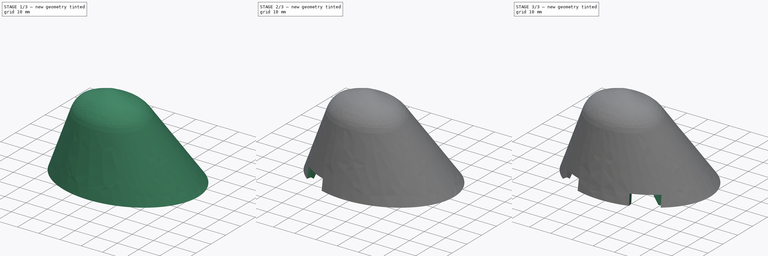
[diagram: build sequence overview — one tinted view per stage of 3, left to right]
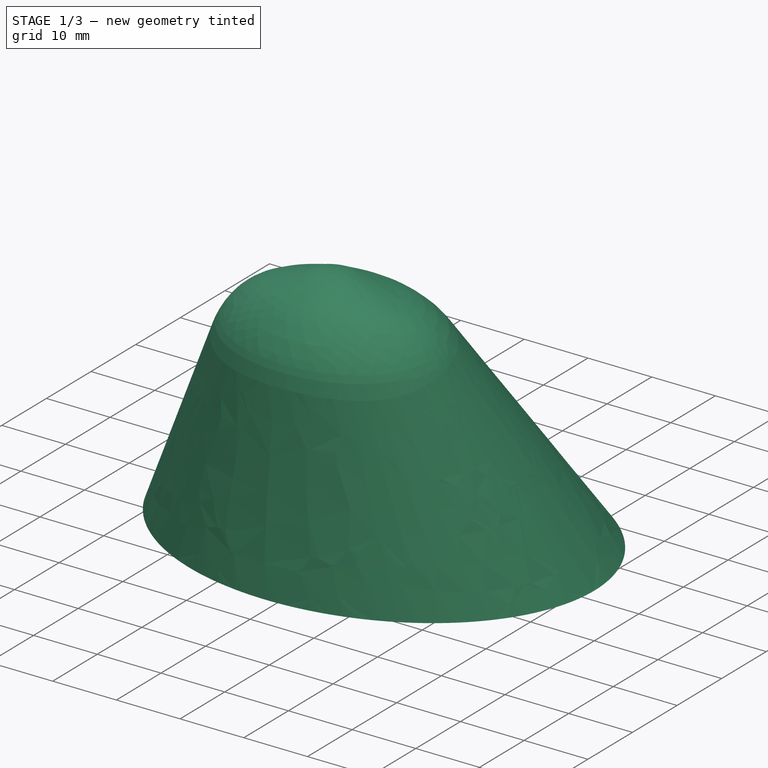
[diagram: stage 1 of 3 — iso view after this stage's code; geometry added in this stage tinted green]
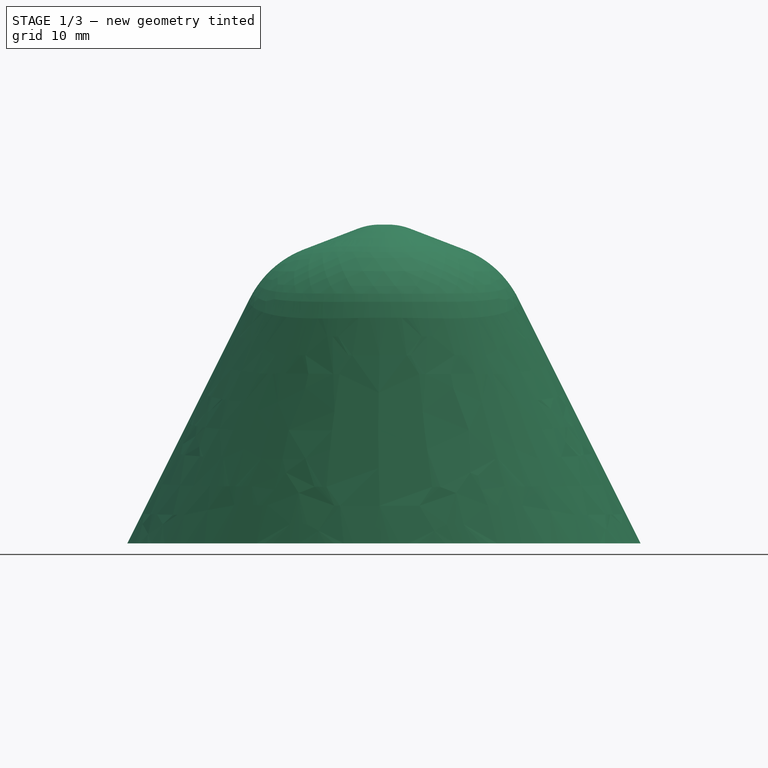
[diagram: stage 1 of 3 — front view after this stage's code; geometry added in this stage tinted green]
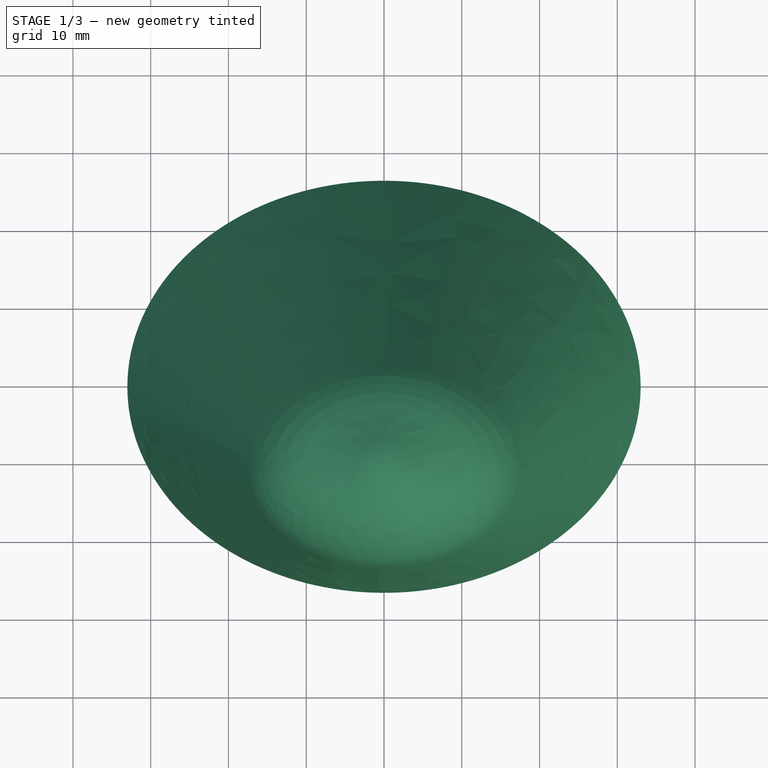
[diagram: stage 1 of 3 — top view after this stage's code; geometry added in this stage tinted green]
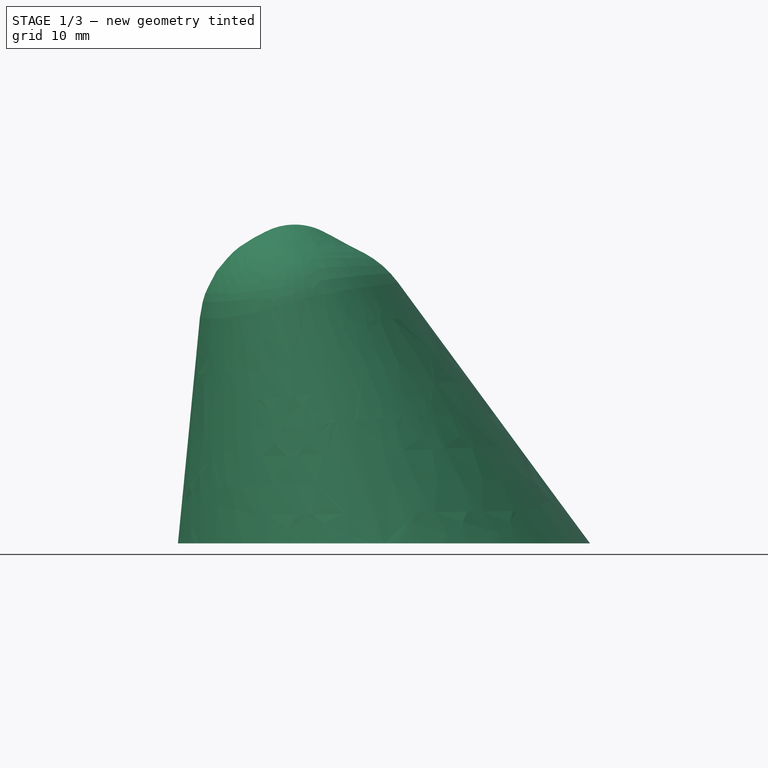
[diagram: stage 1 of 3 — right view after this stage's code; geometry added in this stage tinted green]
FCSTD DOCUMENT  (FreeCAD 0.18.1R)
Label: nosecone
License: All rights reserved
LicenseURL: http://en.wikipedia.org/wiki/All_rights_reserved
objects: Sketcher::SketchObject×8, PartDesign::Plane×6, PartDesign::Fillet×2, PartDesign::Pocket×2, PartDesign::AdditiveLoft×1, PartDesign::Thickness×1, PartDesign::Line×1, PartDesign::Mirrored×1, PartDesign::SubtractivePipe×1, PartDesign::Body×1
note: 28 computed .brp shape members not serialized (recipe doc carries the construction recipe); baked Part::Feature solids carry a one-line shape summary decoded from their .brp

FEATURE [Sketcher::SketchObject] Sketch
  MapMode = 5
  Support = -> [XY_Plane]
  sketch-geometry (5):
    g0: Ellipse CenterX=0 CenterY=0 CenterZ=0 NormalX=0 NormalY=0 NormalZ=1 MajorRadius=33 MinorRadius=26.5 AngleXU=0
    g1: LineSegment [constr] StartX=33 StartY=0 StartZ=0 EndX=-33 EndY=0 EndZ=0
    g2: LineSegment [constr] StartX=0 StartY=26.5 StartZ=0 EndX=0 EndY=-26.5 EndZ=0
    g3: GeomPoint X=19.666 Y=0 Z=0
    g4: GeomPoint X=-19.666 Y=0 Z=0
  constraints (5):
    c: InternalAlignment(g1-g4 -> g0) x4
    c: Coincident(g0,g-1)
    c: PointOnObject(g1,g-1)
    c: DistanceY(g2,g2) = 53
    c: DistanceX(g1,g1) = 66
FEATURE [PartDesign::Plane] DatumPlane
  AttachmentOffset = pos=(0,0,36) rot=(0,0,1;0rad)
  Length = 77.8274
  MapMode = 2
  Placement = pos=(0,0,36) rot=(0,0,1;0rad)
  ResizeMode = 0
  Support = -> [Sketch]
  Width = 64.8154
FEATURE [Sketcher::SketchObject] Sketch001
  ExternalGeometry = -> [Sketch]
  MapMode = 5
  Placement = pos=(0,0,36) rot=(0,0,1;0rad)
  Support = -> [DatumPlane]
  sketch-geometry (6):
    g0: Ellipse CenterX=0 CenterY=-11.5 CenterZ=0 NormalX=0 NormalY=0 NormalZ=1 MajorRadius=15 MinorRadius=11.5 AngleXU=-3.14159
    g1: LineSegment [constr] StartX=-15 StartY=-11.5 StartZ=0 EndX=15 EndY=-11.5 EndZ=0
    g2: LineSegment [constr] StartX=0 StartY=-23 StartZ=0 EndX=0 EndY=0 EndZ=0
    g3: GeomPoint X=-9.63068 Y=-11.5 Z=0
    g4: GeomPoint X=9.63068 Y=-11.5 Z=0
    g5: GeomPoint X=0 Y=-23 Z=0
  constraints (6):
    c: InternalAlignment(g1-g4 -> g0) x4
    c: PointOnObject(g5,g-2)
    c: Coincident(g2,g-1)
    c: DistanceY(g5,g0) = 11.5
    c: Coincident(g2,g5)
    c: DistanceX(g1,g1) = 30
FEATURE [PartDesign::Plane] DatumPlane001
  AttachmentOffset = pos=(0,0,5) rot=(0,0,1;0rad)
  Length = 77.8274
  MapMode = 2
  Placement = pos=(0,-11.5,41) rot=(0,0,1;3.14159rad)
  ResizeMode = 0
  Support = -> [Sketch001]
  Width = 64.8154
FEATURE [Sketcher::SketchObject] Sketch002
  MapMode = 5
  Placement = pos=(0,-11.5,41) rot=(0,0,1;3.14159rad)
  Support = -> [DatumPlane001]
  sketch-geometry (1):
    g0: Circle CenterX=0 CenterY=0 CenterZ=0 NormalX=0 NormalY=0 NormalZ=1 AngleXU=0 Radius=2
  constraints (2):
    c: Coincident(g0,g-1)
    c: Radius(g0) = 2
FEATURE [PartDesign::AdditiveLoft] AdditiveLoft  label="nosecone_solid"
  Closed = true
  Profile = -> Sketch
  Refine = true
  Ruled = true
  Sections = -> [Sketch001,Sketch002]
FEATURE [PartDesign::Fillet] Fillet
  Base = -> AdditiveLoft [Edge6,Edge4]
  BaseFeature = -> AdditiveLoft
  Radius = 13
FEATURE [PartDesign::Fillet] Fillet001
  Base = -> Fillet [Edge18,Edge20]
  BaseFeature = -> Fillet
  Radius = 8
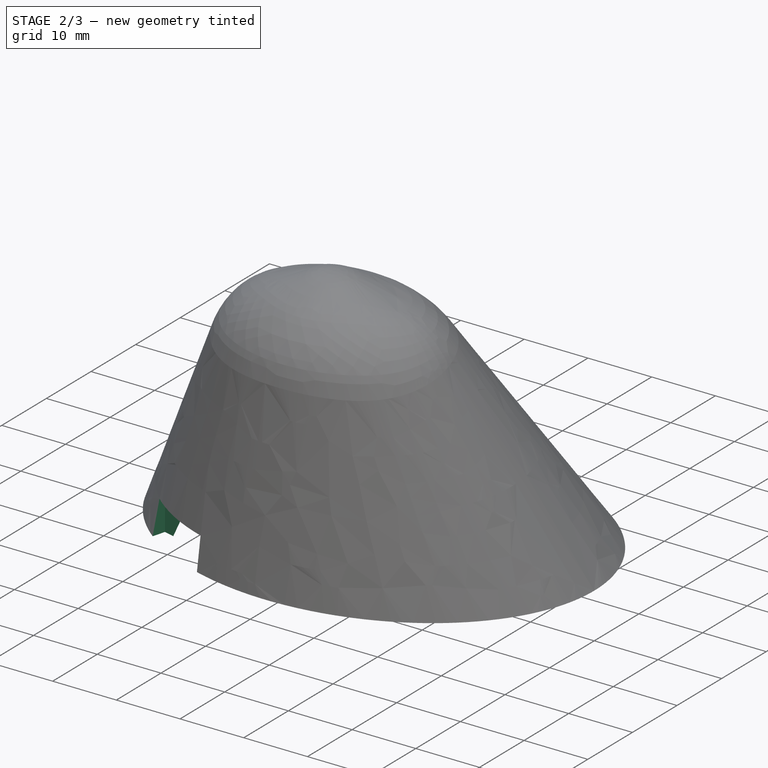
[diagram: stage 2 of 3 — iso view after this stage's code; geometry added in this stage tinted green]
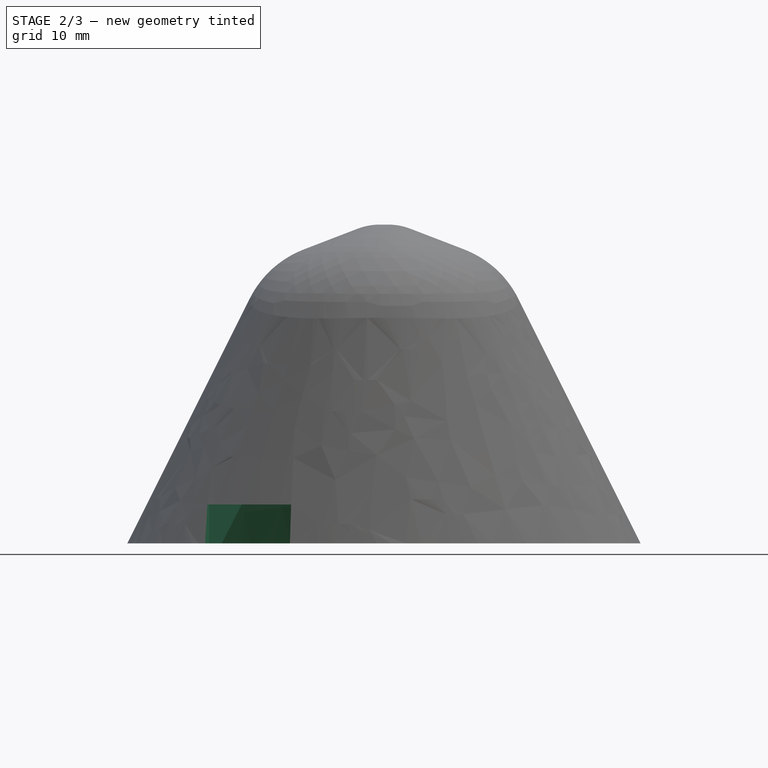
[diagram: stage 2 of 3 — front view after this stage's code; geometry added in this stage tinted green]
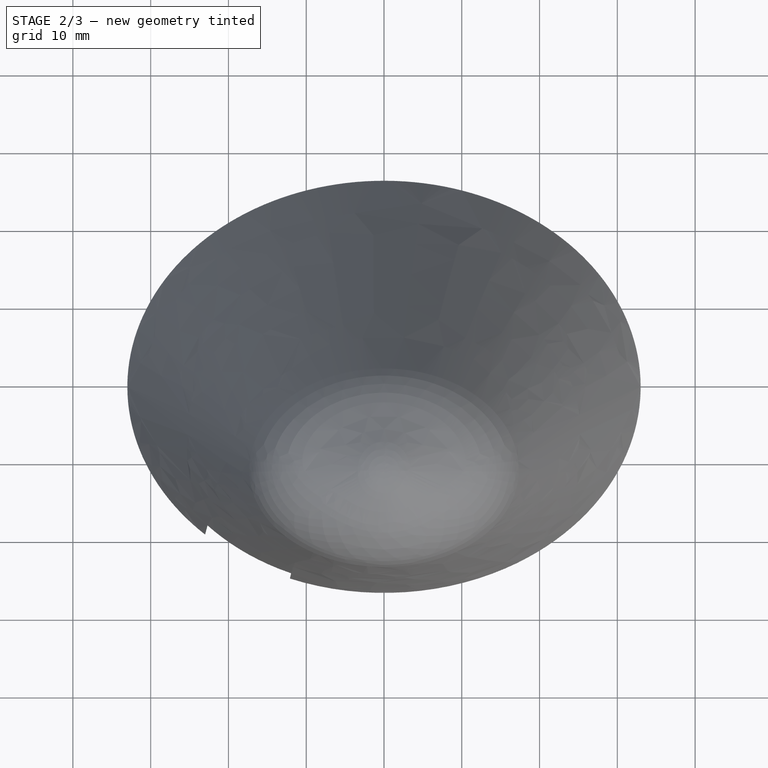
[diagram: stage 2 of 3 — top view after this stage's code; geometry added in this stage tinted green]
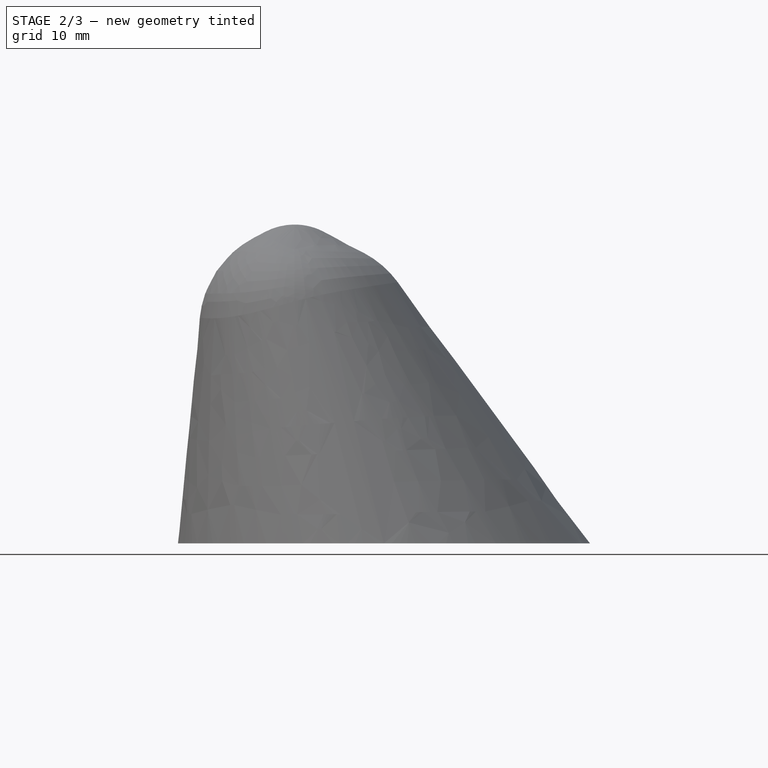
[diagram: stage 2 of 3 — right view after this stage's code; geometry added in this stage tinted green]
FEATURE [PartDesign::Thickness] Thickness  label="nosecone_shell"
  Base = -> Fillet001 [Face13]
  BaseFeature = -> Fillet001
  Join = 1
  Mode = 0
  Reversed = true
  Value = 2.5
FEATURE [PartDesign::Line] DatumLine
  AttacherType = Attacher::AttachEngineLine
  MapMode = 42
  Placement = pos=(-0.000728435,-1.17128,14.6663) rot=(5e-06,0.678377,0.734714;3.14158rad)
  Support = -> [Thickness]
FEATURE [PartDesign::Plane] DatumPlane002
  AttachmentOffset = pos=(0,0,30) rot=(0,0,1;0rad)
  Length = 77.8274
  MapMode = 5
  Placement = pos=(0,0,30) rot=(0,0,1;0rad)
  ResizeMode = 0
  Support = -> [XY_Plane]
  Width = 64.8154
FEATURE [Sketcher::SketchObject] Sketch003
  MapMode = 5
  Placement = pos=(0,0,30) rot=(0,0,1;0rad)
  Support = -> [DatumPlane002]
FEATURE [Sketcher::SketchObject] Sketch005
  MapMode = 5
  Placement = pos=(0,0,0) rot=(1,0,0;3.14159rad)
  sketch-geometry (4):
    g0: LineSegment StartX=-10.8789 StartY=20.1058 StartZ=0 EndX=-12.173 EndY=24.9355 EndZ=0
    g1: LineSegment StartX=-22.47 StartY=17 StartZ=0 EndX=-23.7641 EndY=21.8296 EndZ=0
    g2: LineSegment StartX=-23.7641 StartY=21.8296 StartZ=0 EndX=-12.173 EndY=24.9355 EndZ=0
    g3: LineSegment StartX=-10.8789 StartY=20.1058 StartZ=0 EndX=-22.47 EndY=17 EndZ=0
  constraints (12):
    c: Coincident(g2,g1)
    c: Coincident(g2,g0)
    c: Coincident(g3,g0)
    c: Coincident(g3,g1)
    c: Parallel(g0,g1)
    c: Parallel(g2,g3)
    c: Perpendicular(g3,g1)
    c: Angle(g3,g-2) = 1.309
    c: Distance(g0) = 5
    c: Distance(g3) = 12
    c: DistanceY(g-1,g1) = 17
    c: DistanceX(g1,g-1) = 22.47
FEATURE [PartDesign::Pocket] Pocket001  label="wire_routing"
  BaseFeature = -> Thickness
  Length = 5
  Length2 = 100
  Profile = -> Sketch005
  Refine = true
  Type = 0
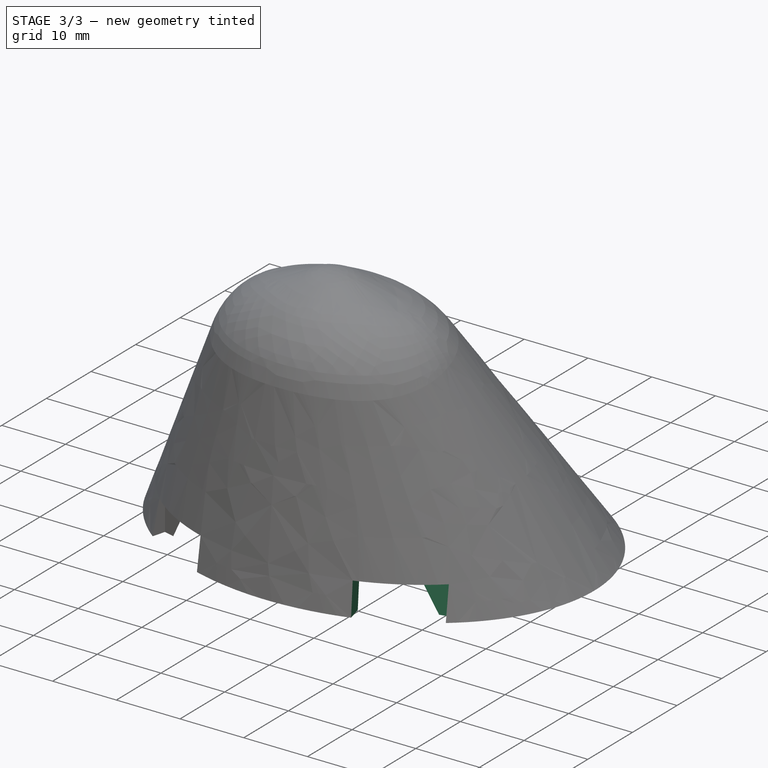
[diagram: stage 3 of 3 — iso view after this stage's code; geometry added in this stage tinted green]
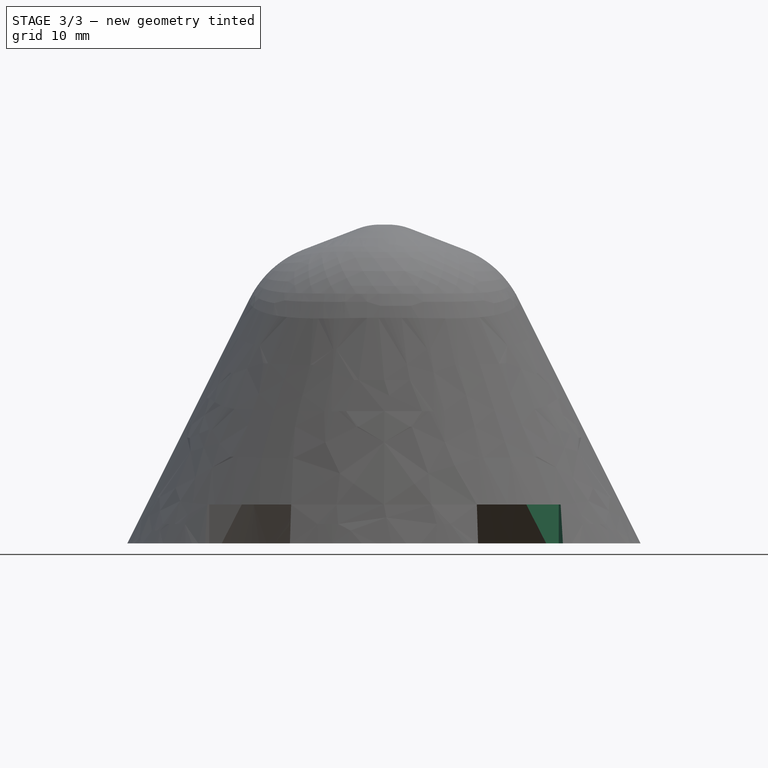
[diagram: stage 3 of 3 — front view after this stage's code; geometry added in this stage tinted green]
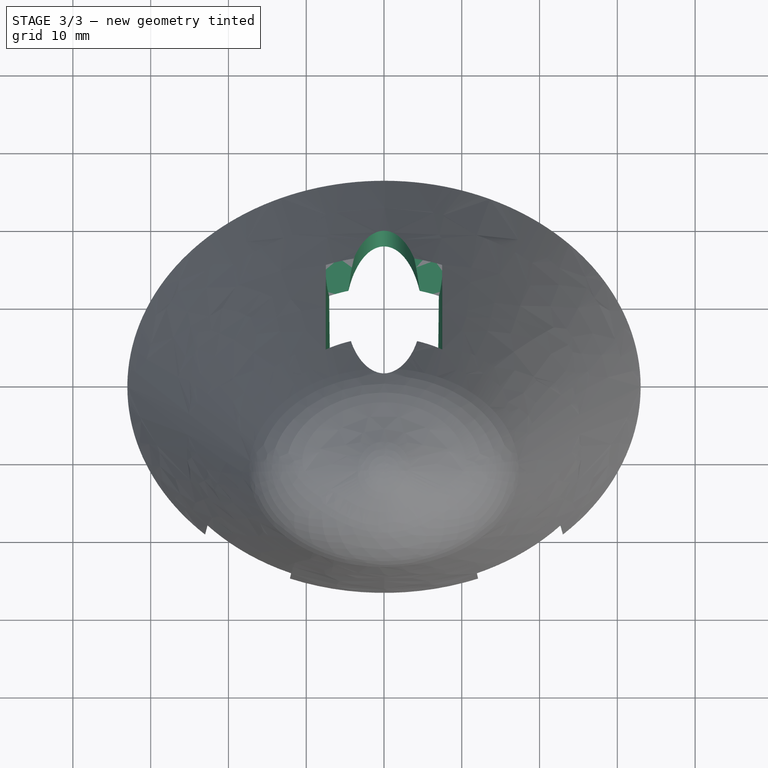
[diagram: stage 3 of 3 — top view after this stage's code; geometry added in this stage tinted green]
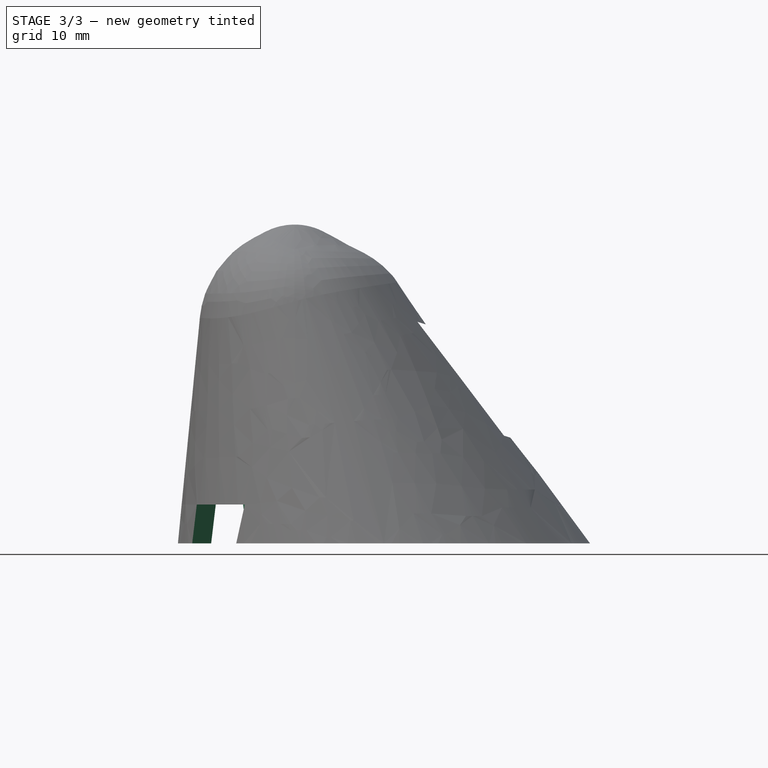
[diagram: stage 3 of 3 — right view after this stage's code; geometry added in this stage tinted green]
FEATURE [PartDesign::Mirrored] Mirrored
  BaseFeature = -> Pocket001
  MirrorPlane = -> Sketch005 [V_Axis]
  Originals = -> [Pocket001]
  Refine = true
FEATURE [PartDesign::Plane] DatumPlane003
  AttachmentOffset = pos=(0,0,6) rot=(0,-1,0;0.061087rad)
  Length = 86.313
  MapMode = 45
  Placement = pos=(7.32343e-05,13.6439,18.4714) rot=(-0.411411,-0.411415,-0.813313;1.77599rad)
  ResizeMode = 0
  Support = -> [Mirrored]
  Width = 79.8336
FEATURE [PartDesign::Plane] DatumPlane004
  AttachmentOffset = pos=(0,0,29) rot=(-1,0,0;0.296706rad)
  Length = 79.1583
  MapMode = 5
  Placement = pos=(0,0,29) rot=(-1,0,0;0.296706rad)
  ResizeMode = 0
  Support = -> [XY_Plane]
  Width = 78.7419
FEATURE [Sketcher::SketchObject] Sketch007
  MapMode = 5
  Placement = pos=(7.32343e-05,13.6439,18.4714) rot=(-0.411411,-0.411415,-0.813313;1.77599rad)
  Support = -> [DatumPlane003]
  sketch-geometry (1):
    g0: LineSegment StartX=11.48 StartY=8 StartZ=0 EndX=-6.52 EndY=8 EndZ=0
  constraints (4):
    c: Horizontal(g0)
    c: DistanceX(g-1,g0) = 11.48
    c: DistanceY(g-1,g0) = 8
    c: Distance(g0) = 18
FEATURE [Sketcher::SketchObject] Sketch006
  ExternalGeometry = -> [Sketch007]
  MapMode = 5
  Placement = pos=(0,1.8e-15,29) rot=(-1,0,0;0.296706rad)
  Support = -> [DatumPlane004]
  sketch-geometry (5):
    g0: Ellipse CenterX=0 CenterY=5 CenterZ=0 NormalX=0 NormalY=0 NormalZ=1 MajorRadius=10 MinorRadius=7.5 AngleXU=1.5708
    g1: LineSegment [constr] StartX=1e-16 StartY=15 StartZ=0 EndX=-1e-16 EndY=-5 EndZ=0
    g2: LineSegment [constr] StartX=-7.5 StartY=5 StartZ=0 EndX=7.5 EndY=5 EndZ=0
    g3: GeomPoint X=0 Y=11.6144 Z=0
    g4: GeomPoint X=0 Y=-1.61438 Z=0
  constraints (6):
    c: InternalAlignment(g1-g4 -> g0) x4
    c: PointOnObject(g0,g-2)
    c: Parallel(g2,g-1)
    c: DistanceY(g-1,g1) = -5
    c: Distance(g2) = 15
    c: DistanceY(g1,g1) = 20
FEATURE [PartDesign::SubtractivePipe] SubtractivePipe
  AuxilleryCurvelinear = true
  AuxillerySpineTangent = false
  BaseFeature = -> Mirrored
  Binormal = (0,0,0)
  Mode = 0
  Profile = -> Sketch006
  Refine = true
  Spine = -> Sketch007
  SpineTangent = false
  Transformation = 0
  Transition = 0
FEATURE [PartDesign::Plane] DatumPlane005
  Length = 86.5148
  MapMode = 45
  Placement = pos=(5.29875e-05,9.88084,21.1839) rot=(-0.406148,-0.406144,-0.818591;1.76964rad)
  ResizeMode = 0
  Support = -> [SubtractivePipe]
  Width = 79.8507
FEATURE [Sketcher::SketchObject] Sketch008
  ExternalGeometry = -> [SubtractivePipe]
  MapMode = 5
  Placement = pos=(5.29875e-05,9.88084,21.1839) rot=(-0.406148,-0.406144,-0.818591;1.76964rad)
  Support = -> [DatumPlane005]
  sketch-geometry (5):
    g0: Ellipse CenterX=0 CenterY=0 CenterZ=0 NormalX=0 NormalY=0 NormalZ=1 MajorRadius=15.8114 MinorRadius=5 AngleXU=-3.14159
    g1: LineSegment [constr] StartX=-15.8114 StartY=0 StartZ=0 EndX=15.8114 EndY=0 EndZ=0
    g2: LineSegment [constr] StartX=0 StartY=-5 StartZ=0 EndX=0 EndY=5 EndZ=0
    g3: GeomPoint X=-15 Y=0 Z=0
    g4: GeomPoint X=15 Y=0 Z=0
  constraints (6):
    c: InternalAlignment(g1-g4 -> g0) x4
    c: Coincident(g0,g-1)
    c: Tangent(g0,g-3)
    c: PointOnObject(g3,g-1)
    c: Distance(g2) = 10
    c: Distance(g3,g4) = 30
FEATURE [PartDesign::Pocket] Pocket
  BaseFeature = -> SubtractivePipe
  Length = 5
  Length2 = 100
  Midplane = true
  Profile = -> Sketch008
  Refine = true
  Type = 0
FEATURE [PartDesign::Body] Body
  Group = -> [Sketch,DatumPlane,Sketch001,DatumPlane001,Sketch002,AdditiveLoft,Fillet,Fillet001,Thickness,DatumLine,DatumPlane002,Sketch003,Sketch005,Pocket001,Mirrored,DatumPlane003,DatumPlane004,Sketch006,Sketch007,SubtractivePipe,DatumPlane005,Sketch008,Pocket]
  Origin = -> Origin
  Tip = -> Pocket
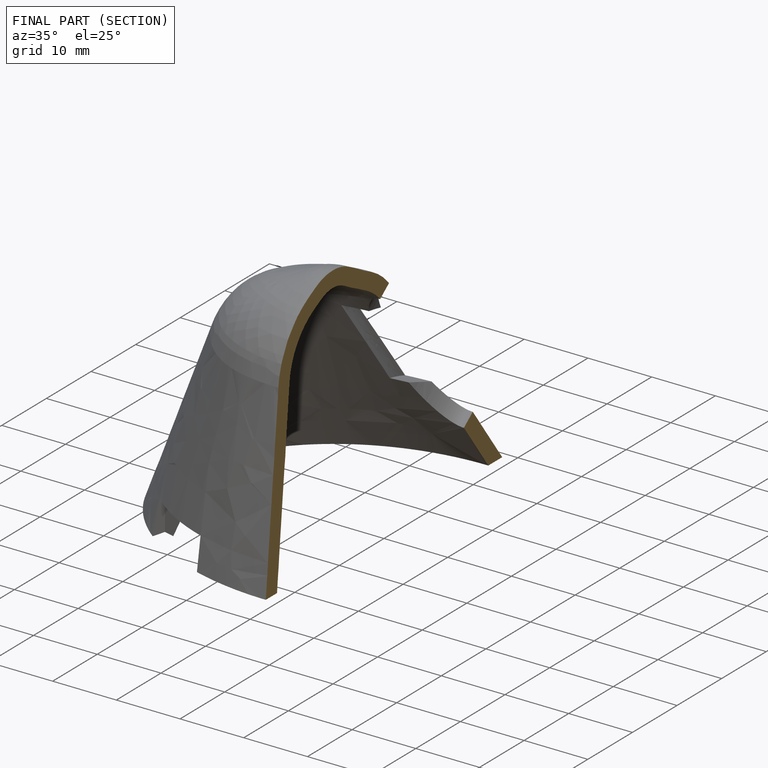
[diagram: finished part — half-section view (interior)]
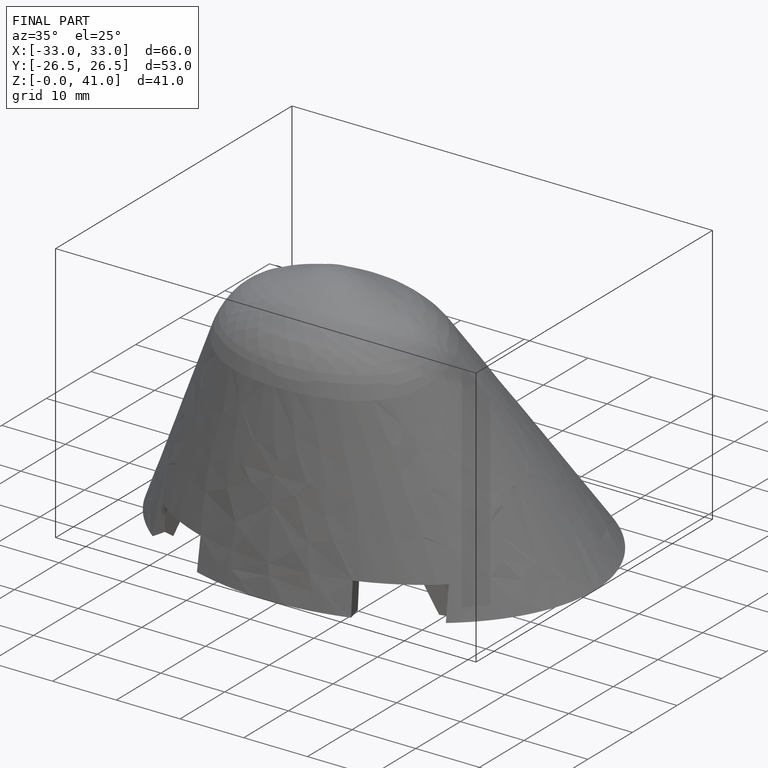
[diagram: finished part — iso view with bounding-box wireframe]
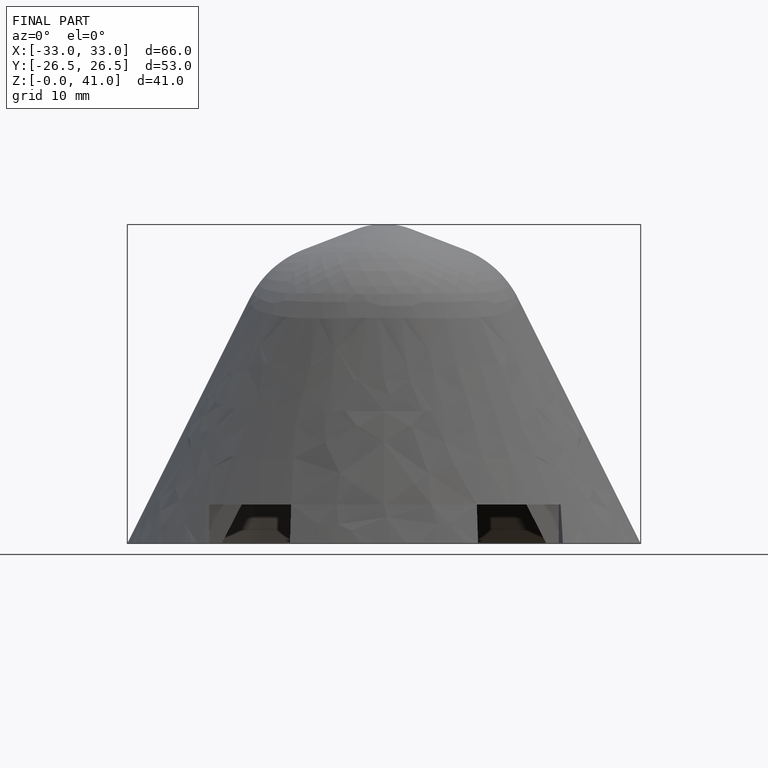
[diagram: finished part — front view with bounding-box wireframe]
